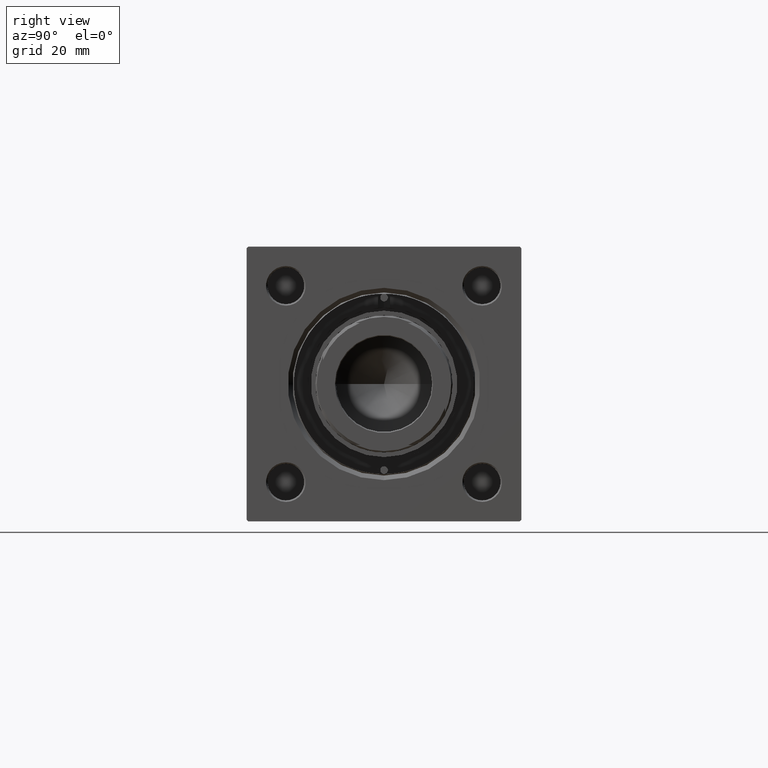
[diagram: clean part render]
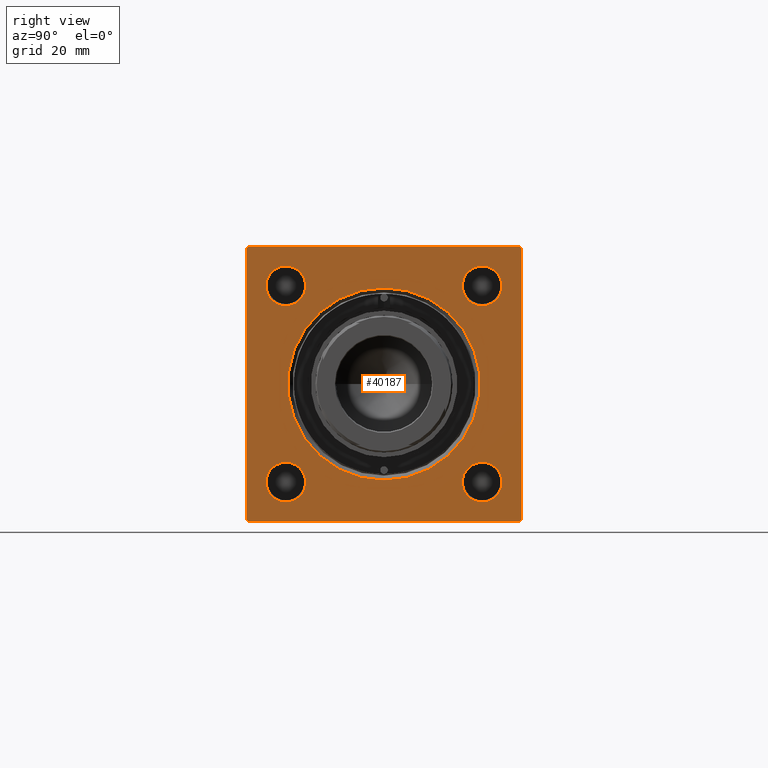
[diagram: same view with one face highlighted and labeled with its STEP entity id]
A machine part, right view. The second image highlights one B-rep face of the part: STEP entity #40187.
In plain terms, the highlighted planar face has unit normal (-1, 0, 0).
Its self-contained STEP definition (entity closure, byte-faithful):
#148 = VERTEX_POINT ( 'NONE', #41970 ) ;
#233 = CARTESIAN_POINT ( 'NONE',  ( 155.0000000000000000, 45.00000000000001421, -45.00000000000000000 ) ) ;
#368 = EDGE_CURVE ( 'NONE', #148, #38684, #41384, .T. ) ;
#481 = LINE ( 'NONE', #233, #44015 ) ;
#578 = CARTESIAN_POINT ( 'NONE',  ( 155.0000000000000000, 0.000000000000000000, 0.000000000000000000 ) ) ;
#622 = CARTESIAN_POINT ( 'NONE',  ( 155.0000000000000000, 45.00000000000001421, 44.49999999999997158 ) ) ;
#983 = EDGE_CURVE ( 'NONE', #18740, #4279, #13852, .T. ) ;
#1298 = EDGE_CURVE ( 'NONE', #22414, #35086, #21862, .T. ) ;
#2025 = DIRECTION ( 'NONE',  ( 0.000000000000000000, 0.000000000000000000, 1.000000000000000000 ) ) ;
#2160 = CIRCLE ( 'NONE', #37099, 31.50000000000000000 ) ;
#2368 = AXIS2_PLACEMENT_3D ( 'NONE', #47549, #28489, #21117 ) ;
#2494 = LINE ( 'NONE', #49026, #29215 ) ;
#3090 = EDGE_CURVE ( 'NONE', #17508, #18740, #2494, .T. ) ;
#4027 = EDGE_LOOP ( 'NONE', ( #44384, #35765 ) ) ;
#4279 = VERTEX_POINT ( 'NONE', #10151 ) ;
#6112 = VECTOR ( 'NONE', #48510, 1000.000000000000000 ) ;
#6225 = CARTESIAN_POINT ( 'NONE',  ( 155.0000000000000000, -32.15000000000001279, -32.15000000000000568 ) ) ;
#6268 = CARTESIAN_POINT ( 'NONE',  ( 155.0000000000000000, -44.49999999999990052, -45.00000000000000000 ) ) ;
#6730 = EDGE_CURVE ( 'NONE', #39373, #29212, #31639, .T. ) ;
#7428 = CARTESIAN_POINT ( 'NONE',  ( 155.0000000000000000, 32.14999999999999147, 25.64999999999997726 ) ) ;
#7770 = DIRECTION ( 'NONE',  ( 0.000000000000000000, 7.709882115452478166E-17, -1.000000000000000000 ) ) ;
#8648 = FACE_BOUND ( 'NONE', #4027, .T. ) ;
#9561 = DIRECTION ( 'NONE',  ( 0.000000000000000000, 0.000000000000000000, 1.000000000000000000 ) ) ;
#9598 = DIRECTION ( 'NONE',  ( -1.000000000000000000, -0.000000000000000000, -0.000000000000000000 ) ) ;
#9620 = CARTESIAN_POINT ( 'NONE',  ( 155.0000000000000000, 32.14999999999999147, 38.65000000000003411 ) ) ;
#10151 = CARTESIAN_POINT ( 'NONE',  ( 155.0000000000000000, -45.00000000000000000, 44.49999999999995737 ) ) ;
#10152 = ORIENTED_EDGE ( 'NONE', *, *, #1298, .T. ) ;
#10448 = DIRECTION ( 'NONE',  ( 0.000000000000000000, 0.000000000000000000, 1.000000000000000000 ) ) ;
#10512 = CIRCLE ( 'NONE', #45435, 6.500000000000033751 ) ;
#10599 = CARTESIAN_POINT ( 'NONE',  ( 155.0000000000000000, 44.50000000000001421, -45.00000000000000000 ) ) ;
#11225 = EDGE_LOOP ( 'NONE', ( #48870, #31302 ) ) ;
#11789 = ORIENTED_EDGE ( 'NONE', *, *, #24840, .T. ) ;
#11856 = CARTESIAN_POINT ( 'NONE',  ( 155.0000000000000000, -45.00000000000000000, 44.99999999999998579 ) ) ;
#12448 = CARTESIAN_POINT ( 'NONE',  ( 155.0000000000000000, -32.15000000000001279, -38.65000000000004832 ) ) ;
#12650 = EDGE_CURVE ( 'NONE', #29212, #39373, #48047, .T. ) ;
#12986 = FACE_OUTER_BOUND ( 'NONE', #26005, .T. ) ;
#13473 = CARTESIAN_POINT ( 'NONE',  ( 155.0000000000000000, 32.14999999999999147, -32.15000000000000568 ) ) ;
#13852 = LINE ( 'NONE', #44620, #42994 ) ;
#14061 = EDGE_CURVE ( 'NONE', #22774, #18975, #481, .T. ) ;
#14193 = DIRECTION ( 'NONE',  ( 0.000000000000000000, -1.000000000000000000, -1.541976423090495140E-16 ) ) ;
#15156 = CARTESIAN_POINT ( 'NONE',  ( 155.0000000000000000, 45.00000000000001421, -44.50000000000000000 ) ) ;
#15237 = DIRECTION ( 'NONE',  ( 0.000000000000000000, -1.000000000000000000, 0.000000000000000000 ) ) ;
#15257 = VERTEX_POINT ( 'NONE', #622 ) ;
#15322 = ORIENTED_EDGE ( 'NONE', *, *, #40552, .F. ) ;
#15405 = LINE ( 'NONE', #11856, #38024 ) ;
#15661 = AXIS2_PLACEMENT_3D ( 'NONE', #17166, #44370, #25048 ) ;
#16095 = DIRECTION ( 'NONE',  ( 0.000000000000000000, 0.000000000000000000, 1.000000000000000000 ) ) ;
#16418 = EDGE_CURVE ( 'NONE', #37700, #30720, #37608, .T. ) ;
#16469 = CARTESIAN_POINT ( 'NONE',  ( 155.0000000000000000, 32.14999999999999147, -32.15000000000000568 ) ) ;
#16977 = DIRECTION ( 'NONE',  ( -1.000000000000000000, -0.000000000000000000, -0.000000000000000000 ) ) ;
#17097 = CARTESIAN_POINT ( 'NONE',  ( 155.0000000000000000, 32.14999999999999147, -25.64999999999997016 ) ) ;
#17166 = CARTESIAN_POINT ( 'NONE',  ( 155.0000000000000000, -32.14999999999999147, 32.14999999999999147 ) ) ;
#17508 = VERTEX_POINT ( 'NONE', #48092 ) ;
#18149 = ORIENTED_EDGE ( 'NONE', *, *, #33458, .T. ) ;
#18569 = CARTESIAN_POINT ( 'NONE',  ( 155.0000000000000000, 32.14999999999999147, 32.15000000000000568 ) ) ;
#18740 = VERTEX_POINT ( 'NONE', #34287 ) ;
#18975 = VERTEX_POINT ( 'NONE', #6268 ) ;
#19399 = AXIS2_PLACEMENT_3D ( 'NONE', #35773, #44163, #31705 ) ;
#19412 = VERTEX_POINT ( 'NONE', #7428 ) ;
#19419 = VECTOR ( 'NONE', #30977, 1000.000000000000000 ) ;
#19657 = ORIENTED_EDGE ( 'NONE', *, *, #3090, .T. ) ;
#20095 = PLANE ( 'NONE',  #2368 ) ;
#21089 = AXIS2_PLACEMENT_3D ( 'NONE', #6225, #37262, #33443 ) ;
#21117 = DIRECTION ( 'NONE',  ( -0.000000000000000000, 0.000000000000000000, 1.000000000000000000 ) ) ;
#21306 = CARTESIAN_POINT ( 'NONE',  ( 155.0000000000000000, -32.14999999999999147, 32.14999999999999147 ) ) ;
#21862 = CIRCLE ( 'NONE', #19399, 31.50000000000000000 ) ;
#22414 = VERTEX_POINT ( 'NONE', #40532 ) ;
#22774 = VERTEX_POINT ( 'NONE', #10599 ) ;
#22938 = AXIS2_PLACEMENT_3D ( 'NONE', #16469, #9598, #29169 ) ;
#23387 = CARTESIAN_POINT ( 'NONE',  ( 155.0000000000000000, -32.14999999999999147, 25.64999999999995595 ) ) ;
#24111 = DIRECTION ( 'NONE',  ( -1.000000000000000000, -0.000000000000000000, -0.000000000000000000 ) ) ;
#24122 = CIRCLE ( 'NONE', #37946, 6.500000000000026645 ) ;
#24243 = DIRECTION ( 'NONE',  ( -1.000000000000000000, -0.000000000000000000, -0.000000000000000000 ) ) ;
#24688 = FACE_BOUND ( 'NONE', #11225, .T. ) ;
#24768 = ORIENTED_EDGE ( 'NONE', *, *, #12650, .T. ) ;
#24840 = EDGE_CURVE ( 'NONE', #41213, #18975, #40898, .T. ) ;
#25048 = DIRECTION ( 'NONE',  ( 0.000000000000000000, 0.000000000000000000, 1.000000000000000000 ) ) ;
#25721 = ORIENTED_EDGE ( 'NONE', *, *, #29011, .T. ) ;
#26005 = EDGE_LOOP ( 'NONE', ( #18149, #11789, #42820, #46364, #15322, #32059, #19657, #45083 ) ) ;
#26139 = AXIS2_PLACEMENT_3D ( 'NONE', #32715, #44402, #9561 ) ;
#27291 = VERTEX_POINT ( 'NONE', #33062 ) ;
#27851 = EDGE_CURVE ( 'NONE', #35086, #22414, #2160, .T. ) ;
#28000 = EDGE_LOOP ( 'NONE', ( #10152, #36974 ) ) ;
#28489 = DIRECTION ( 'NONE',  ( -1.000000000000000000, 0.000000000000000000, -0.000000000000000000 ) ) ;
#28988 = FACE_BOUND ( 'NONE', #43111, .T. ) ;
#29011 = EDGE_CURVE ( 'NONE', #42074, #19412, #24122, .T. ) ;
#29169 = DIRECTION ( 'NONE',  ( 0.000000000000000000, 0.000000000000000000, 1.000000000000000000 ) ) ;
#29173 = AXIS2_PLACEMENT_3D ( 'NONE', #13473, #32551, #2025 ) ;
#29212 = VERTEX_POINT ( 'NONE', #12448 ) ;
#29215 = VECTOR ( 'NONE', #14193, 1000.000000000000000 ) ;
#29456 = CIRCLE ( 'NONE', #22938, 6.500000000000033751 ) ;
#29770 = DIRECTION ( 'NONE',  ( -1.000000000000000000, -0.000000000000000000, -0.000000000000000000 ) ) ;
#30720 = VERTEX_POINT ( 'NONE', #40558 ) ;
#30977 = DIRECTION ( 'NONE',  ( 0.000000000000000000, 0.000000000000000000, -1.000000000000000000 ) ) ;
#31302 = ORIENTED_EDGE ( 'NONE', *, *, #47554, .T. ) ;
#31639 = CIRCLE ( 'NONE', #21089, 6.500000000000033751 ) ;
#31705 = DIRECTION ( 'NONE',  ( 0.000000000000000000, 0.000000000000000000, 1.000000000000000000 ) ) ;
#32054 = FACE_BOUND ( 'NONE', #28000, .T. ) ;
#32059 = ORIENTED_EDGE ( 'NONE', *, *, #35569, .T. ) ;
#32551 = DIRECTION ( 'NONE',  ( -1.000000000000000000, -0.000000000000000000, -0.000000000000000000 ) ) ;
#32715 = CARTESIAN_POINT ( 'NONE',  ( 155.0000000000000000, -32.15000000000001279, -32.15000000000000568 ) ) ;
#33011 = CARTESIAN_POINT ( 'NONE',  ( 155.0000000000000000, -44.49999999999992895, -45.00000000000000000 ) ) ;
#33062 = CARTESIAN_POINT ( 'NONE',  ( 155.0000000000000000, 45.00000000000001421, -44.49999999999997158 ) ) ;
#33443 = DIRECTION ( 'NONE',  ( 0.000000000000000000, 0.000000000000000000, 1.000000000000000000 ) ) ;
#33454 = EDGE_CURVE ( 'NONE', #22774, #27291, #34740, .T. ) ;
#33458 = EDGE_CURVE ( 'NONE', #4279, #41213, #15405, .T. ) ;
#34287 = CARTESIAN_POINT ( 'NONE',  ( 155.0000000000000000, -44.49999999999994316, 44.99999999999998579 ) ) ;
#34740 = LINE ( 'NONE', #15156, #35586 ) ;
#34799 = CARTESIAN_POINT ( 'NONE',  ( 155.0000000000000000, 45.00000000000001421, 45.00000000000000000 ) ) ;
#35086 = VERTEX_POINT ( 'NONE', #47286 ) ;
#35569 = EDGE_CURVE ( 'NONE', #15257, #17508, #41053, .T. ) ;
#35586 = VECTOR ( 'NONE', #50227, 1000.000000000000114 ) ;
#35765 = ORIENTED_EDGE ( 'NONE', *, *, #36567, .T. ) ;
#35773 = CARTESIAN_POINT ( 'NONE',  ( 155.0000000000000000, 0.000000000000000000, 0.000000000000000000 ) ) ;
#36567 = EDGE_CURVE ( 'NONE', #30720, #37700, #10512, .T. ) ;
#36974 = ORIENTED_EDGE ( 'NONE', *, *, #27851, .T. ) ;
#37011 = DIRECTION ( 'NONE',  ( -0.000000000000000000, -0.7071067811865474617, -0.7071067811865474617 ) ) ;
#37099 = AXIS2_PLACEMENT_3D ( 'NONE', #578, #24243, #16095 ) ;
#37262 = DIRECTION ( 'NONE',  ( -1.000000000000000000, -0.000000000000000000, -0.000000000000000000 ) ) ;
#37320 = DIRECTION ( 'NONE',  ( 0.000000000000000000, 0.000000000000000000, 1.000000000000000000 ) ) ;
#37608 = CIRCLE ( 'NONE', #15661, 6.500000000000033751 ) ;
#37700 = VERTEX_POINT ( 'NONE', #23387 ) ;
#37746 = CARTESIAN_POINT ( 'NONE',  ( 155.0000000000000000, 44.49999999999998579, 45.00000000000000000 ) ) ;
#37946 = AXIS2_PLACEMENT_3D ( 'NONE', #18569, #29770, #10448 ) ;
#38024 = VECTOR ( 'NONE', #7770, 1000.000000000000000 ) ;
#38684 = VERTEX_POINT ( 'NONE', #17097 ) ;
#38860 = LINE ( 'NONE', #34799, #19419 ) ;
#39373 = VERTEX_POINT ( 'NONE', #49911 ) ;
#39611 = DIRECTION ( 'NONE',  ( 0.000000000000000000, 0.000000000000000000, 1.000000000000000000 ) ) ;
#39640 = ORIENTED_EDGE ( 'NONE', *, *, #6730, .T. ) ;
#39723 = VECTOR ( 'NONE', #40808, 1000.000000000000114 ) ;
#40187 = ADVANCED_FACE ( 'NONE', ( #28988, #8648, #47302, #24688, #32054, #12986 ), #20095, .F. ) ;
#40532 = CARTESIAN_POINT ( 'NONE',  ( 155.0000000000000000, 0.000000000000000000, -31.50000000000000000 ) ) ;
#40552 = EDGE_CURVE ( 'NONE', #15257, #27291, #38860, .T. ) ;
#40558 = CARTESIAN_POINT ( 'NONE',  ( 155.0000000000000000, -32.14999999999999147, 38.65000000000002700 ) ) ;
#40808 = DIRECTION ( 'NONE',  ( 0.000000000000000000, -0.7071067811865474617, 0.7071067811865474617 ) ) ;
#40898 = LINE ( 'NONE', #33011, #6112 ) ;
#41053 = LINE ( 'NONE', #37746, #39723 ) ;
#41213 = VERTEX_POINT ( 'NONE', #45019 ) ;
#41384 = CIRCLE ( 'NONE', #29173, 6.500000000000033751 ) ;
#41690 = AXIS2_PLACEMENT_3D ( 'NONE', #43429, #24111, #39611 ) ;
#41970 = CARTESIAN_POINT ( 'NONE',  ( 155.0000000000000000, 32.14999999999999147, -38.65000000000004832 ) ) ;
#42074 = VERTEX_POINT ( 'NONE', #9620 ) ;
#42820 = ORIENTED_EDGE ( 'NONE', *, *, #14061, .F. ) ;
#42994 = VECTOR ( 'NONE', #37011, 1000.000000000000114 ) ;
#43111 = EDGE_LOOP ( 'NONE', ( #44890, #25721 ) ) ;
#43429 = CARTESIAN_POINT ( 'NONE',  ( 155.0000000000000000, 32.14999999999999147, 32.15000000000000568 ) ) ;
#44015 = VECTOR ( 'NONE', #15237, 1000.000000000000000 ) ;
#44163 = DIRECTION ( 'NONE',  ( -1.000000000000000000, -0.000000000000000000, -0.000000000000000000 ) ) ;
#44370 = DIRECTION ( 'NONE',  ( -1.000000000000000000, -0.000000000000000000, -0.000000000000000000 ) ) ;
#44384 = ORIENTED_EDGE ( 'NONE', *, *, #16418, .T. ) ;
#44402 = DIRECTION ( 'NONE',  ( -1.000000000000000000, -0.000000000000000000, -0.000000000000000000 ) ) ;
#44620 = CARTESIAN_POINT ( 'NONE',  ( 155.0000000000000000, -45.00000000000000000, 44.49999999999995737 ) ) ;
#44890 = ORIENTED_EDGE ( 'NONE', *, *, #49692, .T. ) ;
#44961 = CIRCLE ( 'NONE', #41690, 6.500000000000026645 ) ;
#45019 = CARTESIAN_POINT ( 'NONE',  ( 155.0000000000000000, -44.99999999999999289, -44.49999999999991473 ) ) ;
#45083 = ORIENTED_EDGE ( 'NONE', *, *, #983, .T. ) ;
#45435 = AXIS2_PLACEMENT_3D ( 'NONE', #21306, #16977, #37320 ) ;
#46364 = ORIENTED_EDGE ( 'NONE', *, *, #33454, .T. ) ;
#46750 = EDGE_LOOP ( 'NONE', ( #24768, #39640 ) ) ;
#47286 = CARTESIAN_POINT ( 'NONE',  ( 155.0000000000000000, 3.857637417314162689E-15, 31.50000000000000000 ) ) ;
#47302 = FACE_BOUND ( 'NONE', #46750, .T. ) ;
#47549 = CARTESIAN_POINT ( 'NONE',  ( 155.0000000000000000, 0.000000000000000000, 0.000000000000000000 ) ) ;
#47554 = EDGE_CURVE ( 'NONE', #38684, #148, #29456, .T. ) ;
#48047 = CIRCLE ( 'NONE', #26139, 6.500000000000033751 ) ;
#48092 = CARTESIAN_POINT ( 'NONE',  ( 155.0000000000000000, 44.49999999999998579, 45.00000000000000000 ) ) ;
#48510 = DIRECTION ( 'NONE',  ( 0.000000000000000000, 0.7071067811865524577, -0.7071067811865426878 ) ) ;
#48870 = ORIENTED_EDGE ( 'NONE', *, *, #368, .T. ) ;
#49026 = CARTESIAN_POINT ( 'NONE',  ( 155.0000000000000000, 45.00000000000001421, 45.00000000000000000 ) ) ;
#49692 = EDGE_CURVE ( 'NONE', #19412, #42074, #44961, .T. ) ;
#49911 = CARTESIAN_POINT ( 'NONE',  ( 155.0000000000000000, -32.15000000000001279, -25.64999999999997016 ) ) ;
#50227 = DIRECTION ( 'NONE',  ( -0.000000000000000000, 0.7071067811865474617, 0.7071067811865474617 ) ) ;